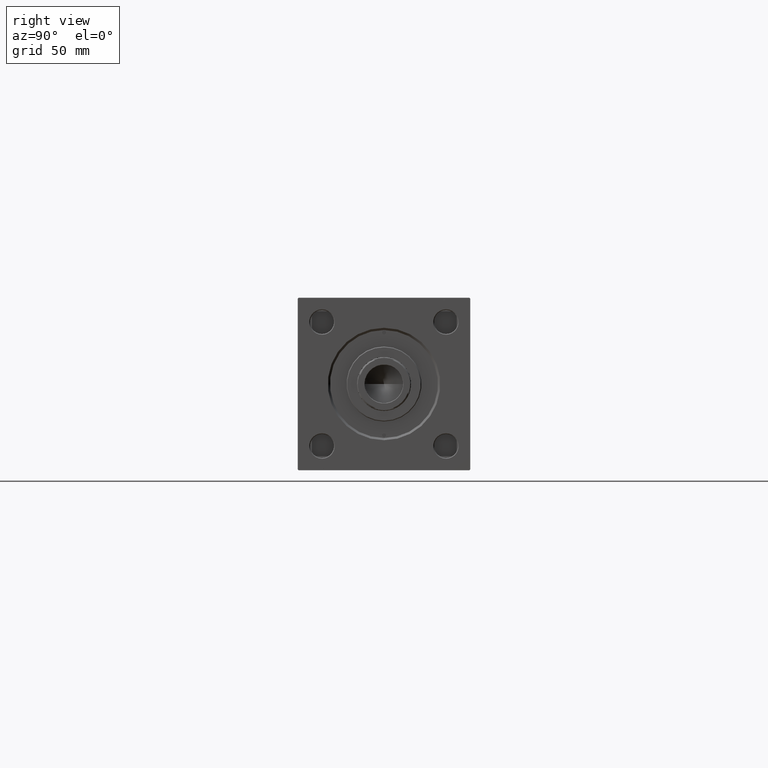
[diagram: clean part render]
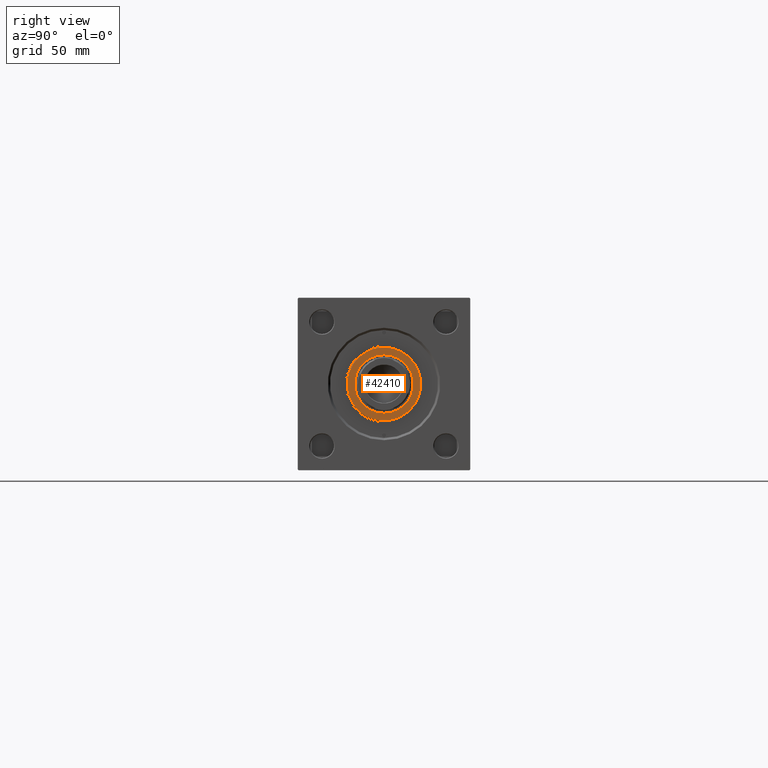
[diagram: same view with one face highlighted and labeled with its STEP entity id]
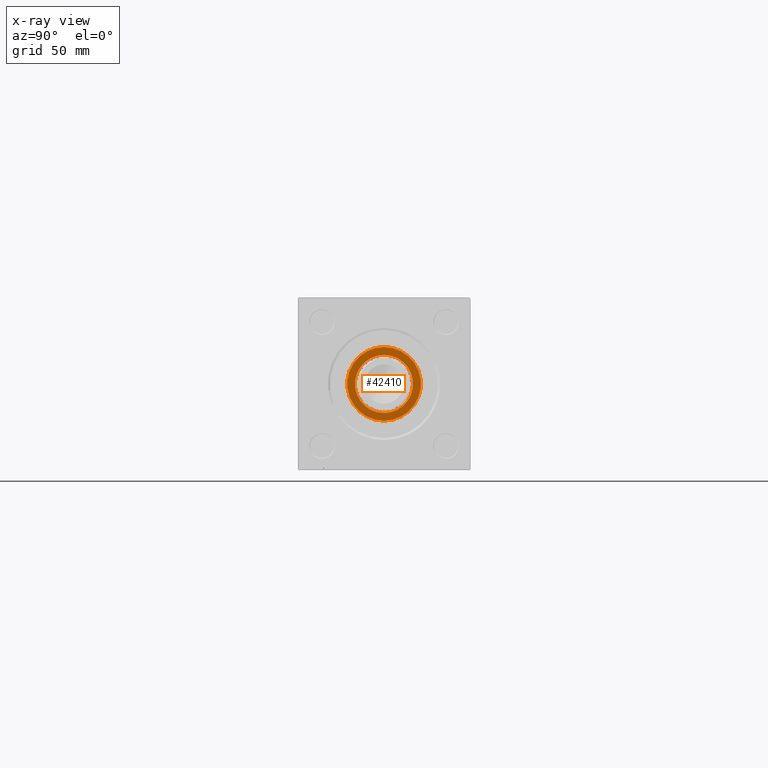
[diagram: x-ray of the same camera — body ghosted, the highlighted face saturated]
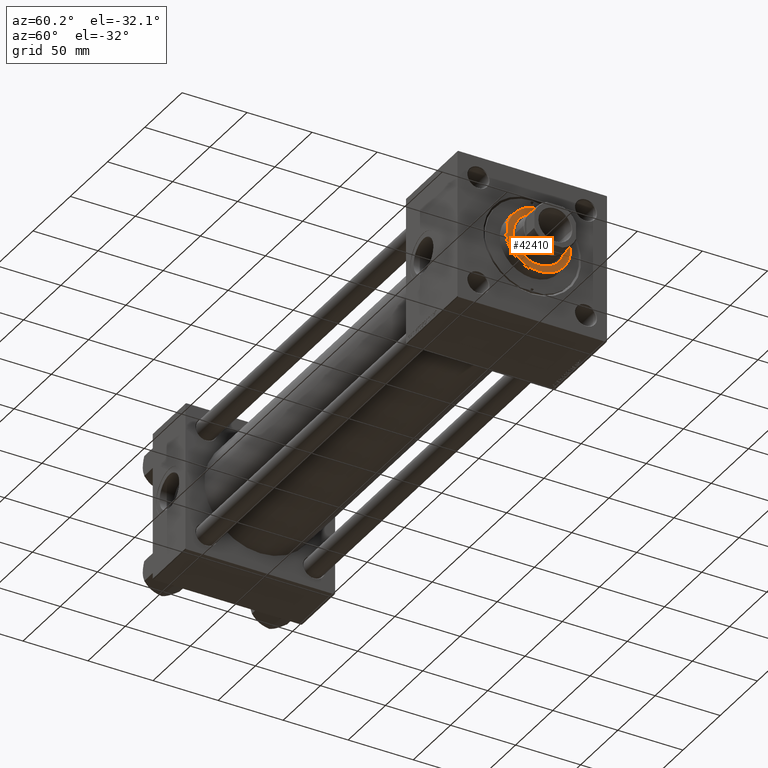
[diagram: same view with one face highlighted and labeled with its STEP entity id]
A machine part, right view. The second image highlights one B-rep face of the part: STEP entity #42410.
The next image is the same camera in x-ray: the body ghosted, the highlighted face saturated — about 0% of this face is hidden behind the body in this view.
A second angle (auxiliary view) of the same face is appended — the face is thin or edge-on in the first view.
In plain terms, the highlighted planar face has unit normal (1, 0, 0).
Its self-contained STEP definition (entity closure, byte-faithful):
#524 = CIRCLE ( 'NONE', #41578, 19.50000000000000000 ) ;
#2708 = EDGE_CURVE ( 'NONE', #19459, #13318, #26749, .T. ) ;
#3560 = EDGE_CURVE ( 'NONE', #5319, #23418, #524, .T. ) ;
#4911 = ORIENTED_EDGE ( 'NONE', *, *, #35973, .F. ) ;
#5319 = VERTEX_POINT ( 'NONE', #30258 ) ;
#7422 = FACE_OUTER_BOUND ( 'NONE', #30733, .T. ) ;
#10516 = PLANE ( 'NONE',  #49323 ) ;
#11182 = AXIS2_PLACEMENT_3D ( 'NONE', #16149, #12549, #28223 ) ;
#11398 = DIRECTION ( 'NONE',  ( 0.000000000000000000, 0.000000000000000000, 1.000000000000000000 ) ) ;
#12500 = CIRCLE ( 'NONE', #42890, 24.49999999999999645 ) ;
#12549 = DIRECTION ( 'NONE',  ( 0.000000000000000000, 0.000000000000000000, 1.000000000000000000 ) ) ;
#13318 = VERTEX_POINT ( 'NONE', #31554 ) ;
#14364 = DIRECTION ( 'NONE',  ( 1.000000000000000000, 0.000000000000000000, -0.000000000000000000 ) ) ;
#14995 = CARTESIAN_POINT ( 'NONE',  ( 0.000000000000000000, 0.000000000000000000, 37.69999999999999574 ) ) ;
#16149 = CARTESIAN_POINT ( 'NONE',  ( 0.000000000000000000, 0.000000000000000000, 37.69999999999999574 ) ) ;
#16304 = CARTESIAN_POINT ( 'NONE',  ( -19.50000000000000000, 2.388061258337338939E-15, 37.69999999999999574 ) ) ;
#17639 = DIRECTION ( 'NONE',  ( 0.000000000000000000, 0.000000000000000000, 1.000000000000000000 ) ) ;
#18538 = CARTESIAN_POINT ( 'NONE',  ( -24.49999999999999645, 0.000000000000000000, 37.69999999999999574 ) ) ;
#19459 = VERTEX_POINT ( 'NONE', #18538 ) ;
#22731 = ORIENTED_EDGE ( 'NONE', *, *, #3560, .F. ) ;
#23418 = VERTEX_POINT ( 'NONE', #16304 ) ;
#24167 = DIRECTION ( 'NONE',  ( 1.000000000000000000, 0.000000000000000000, 0.000000000000000000 ) ) ;
#25304 = AXIS2_PLACEMENT_3D ( 'NONE', #49252, #17639, #29201 ) ;
#25921 = EDGE_CURVE ( 'NONE', #13318, #19459, #12500, .T. ) ;
#26749 = CIRCLE ( 'NONE', #11182, 24.49999999999999645 ) ;
#28223 = DIRECTION ( 'NONE',  ( 1.000000000000000000, 0.000000000000000000, 0.000000000000000000 ) ) ;
#29050 = DIRECTION ( 'NONE',  ( 0.000000000000000000, 0.000000000000000000, 1.000000000000000000 ) ) ;
#29201 = DIRECTION ( 'NONE',  ( 1.000000000000000000, 0.000000000000000000, 0.000000000000000000 ) ) ;
#30258 = CARTESIAN_POINT ( 'NONE',  ( 19.50000000000000000, 0.000000000000000000, 37.69999999999999574 ) ) ;
#30299 = DIRECTION ( 'NONE',  ( 0.000000000000000000, 0.000000000000000000, 1.000000000000000000 ) ) ;
#30733 = EDGE_LOOP ( 'NONE', ( #37278, #32151 ) ) ;
#31554 = CARTESIAN_POINT ( 'NONE',  ( 24.49999999999999645, 3.031000827889698861E-15, 37.69999999999999574 ) ) ;
#32151 = ORIENTED_EDGE ( 'NONE', *, *, #25921, .T. ) ;
#33908 = FACE_BOUND ( 'NONE', #36841, .T. ) ;
#35973 = EDGE_CURVE ( 'NONE', #23418, #5319, #43388, .T. ) ;
#36841 = EDGE_LOOP ( 'NONE', ( #22731, #4911 ) ) ;
#37278 = ORIENTED_EDGE ( 'NONE', *, *, #2708, .T. ) ;
#41578 = AXIS2_PLACEMENT_3D ( 'NONE', #47563, #29050, #24167 ) ;
#42410 = ADVANCED_FACE ( 'NONE', ( #33908, #7422 ), #10516, .T. ) ;
#42890 = AXIS2_PLACEMENT_3D ( 'NONE', #14995, #11398, #46335 ) ;
#43388 = CIRCLE ( 'NONE', #25304, 19.50000000000000000 ) ;
#46335 = DIRECTION ( 'NONE',  ( 1.000000000000000000, 0.000000000000000000, 0.000000000000000000 ) ) ;
#47563 = CARTESIAN_POINT ( 'NONE',  ( 0.000000000000000000, 0.000000000000000000, 37.69999999999999574 ) ) ;
#49252 = CARTESIAN_POINT ( 'NONE',  ( 0.000000000000000000, 0.000000000000000000, 37.69999999999999574 ) ) ;
#49323 = AXIS2_PLACEMENT_3D ( 'NONE', #49573, #30299, #14364 ) ;
#49573 = CARTESIAN_POINT ( 'NONE',  ( 0.000000000000000000, 0.000000000000000000, 37.69999999999999574 ) ) ;